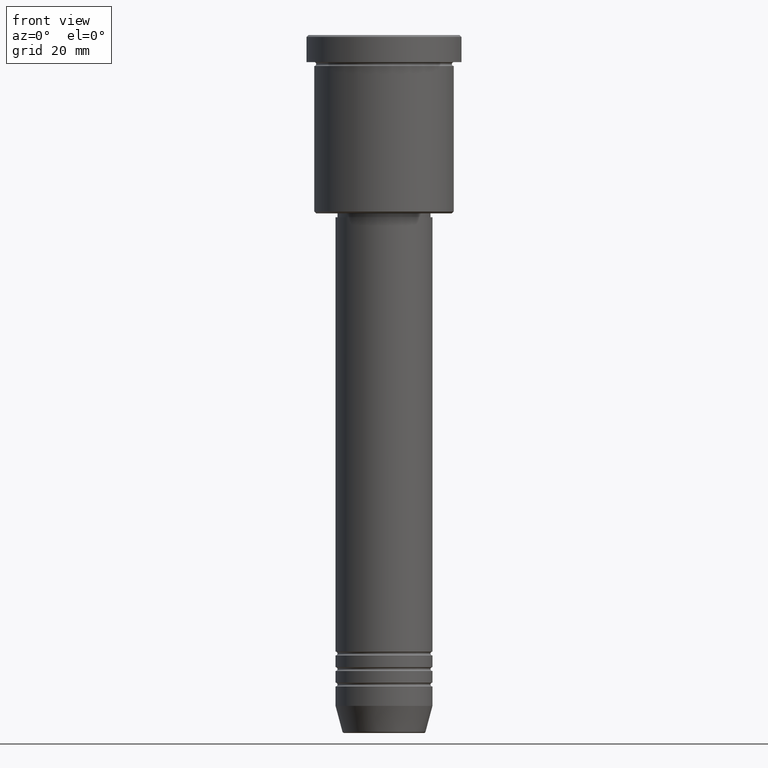
[diagram: clean part render]
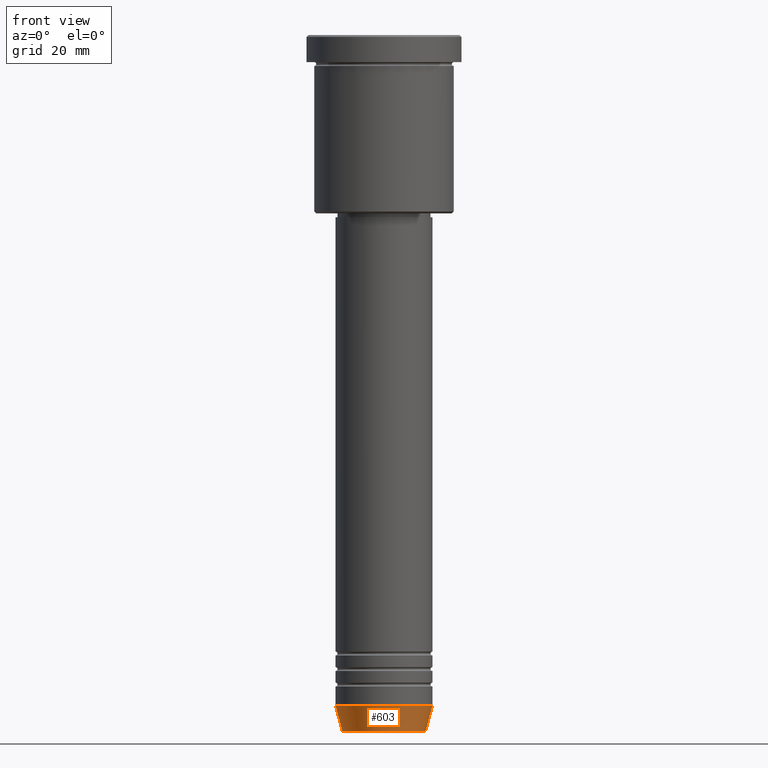
[diagram: same view with one face highlighted and labeled with its STEP entity id]
A machine part, front view. The second image highlights one B-rep face of the part: STEP entity #603.
In plain terms, the highlighted conical surface has half-angle 15 deg.
Its self-contained STEP definition (entity closure, byte-faithful):
#71 = VECTOR ( 'NONE', #135, 1000.000000000000000 ) ;
#135 = DIRECTION ( 'NONE',  ( 0.2588190451025213501, 0.000000000000000000, 0.9659258262890680902 ) ) ;
#143 = CARTESIAN_POINT ( 'NONE',  ( -10.72365507213719127, 1.422038742429750516E-15, -179.6294095225512706 ) ) ;
#150 = LINE ( 'NONE', #1051, #71 ) ;
#210 = CARTESIAN_POINT ( 'NONE',  ( 0.000000000000000000, 0.000000000000000000, -173.0000000000000284 ) ) ;
#236 = DIRECTION ( 'NONE',  ( 1.000000000000000000, 0.000000000000000000, 0.000000000000000000 ) ) ;
#262 = ORIENTED_EDGE ( 'NONE', *, *, #611, .F. ) ;
#318 = CIRCLE ( 'NONE', #834, 10.72365507213719127 ) ;
#389 = DIRECTION ( 'NONE',  ( -0.2588190451025213501, 3.169619151431772337E-17, 0.9659258262890680902 ) ) ;
#399 = AXIS2_PLACEMENT_3D ( 'NONE', #210, #844, #409 ) ;
#409 = DIRECTION ( 'NONE',  ( 1.000000000000000000, 0.000000000000000000, 0.000000000000000000 ) ) ;
#415 = DIRECTION ( 'NONE',  ( -0.000000000000000000, -0.000000000000000000, 1.000000000000000000 ) ) ;
#418 = CONICAL_SURFACE ( 'NONE', #399, 12.50000000000000000, 0.2617993877991500740 ) ;
#427 = DIRECTION ( 'NONE',  ( 1.000000000000000000, 0.000000000000000000, 0.000000000000000000 ) ) ;
#457 = EDGE_CURVE ( 'NONE', #1079, #1025, #318, .T. ) ;
#482 = LINE ( 'NONE', #1126, #1019 ) ;
#503 = DIRECTION ( 'NONE',  ( -0.000000000000000000, -0.000000000000000000, 1.000000000000000000 ) ) ;
#555 = CARTESIAN_POINT ( 'NONE',  ( 12.50000000000000000, 0.000000000000000000, -173.0000000000000284 ) ) ;
#603 = ADVANCED_FACE ( 'NONE', ( #764 ), #418, .T. ) ;
#611 = EDGE_CURVE ( 'NONE', #1079, #859, #482, .T. ) ;
#614 = CARTESIAN_POINT ( 'NONE',  ( 0.000000000000000000, 0.000000000000000000, -179.6294095225512706 ) ) ;
#661 = AXIS2_PLACEMENT_3D ( 'NONE', #693, #503, #427 ) ;
#693 = CARTESIAN_POINT ( 'NONE',  ( 0.000000000000000000, 0.000000000000000000, -173.0000000000000284 ) ) ;
#701 = EDGE_CURVE ( 'NONE', #1025, #975, #150, .T. ) ;
#733 = EDGE_CURVE ( 'NONE', #859, #975, #1181, .T. ) ;
#764 = FACE_OUTER_BOUND ( 'NONE', #990, .T. ) ;
#834 = AXIS2_PLACEMENT_3D ( 'NONE', #614, #415, #236 ) ;
#843 = ORIENTED_EDGE ( 'NONE', *, *, #733, .F. ) ;
#844 = DIRECTION ( 'NONE',  ( -0.000000000000000000, -0.000000000000000000, 1.000000000000000000 ) ) ;
#859 = VERTEX_POINT ( 'NONE', #1166 ) ;
#861 = ORIENTED_EDGE ( 'NONE', *, *, #701, .T. ) ;
#975 = VERTEX_POINT ( 'NONE', #555 ) ;
#990 = EDGE_LOOP ( 'NONE', ( #262, #1074, #861, #843 ) ) ;
#1019 = VECTOR ( 'NONE', #389, 1000.000000000000000 ) ;
#1025 = VERTEX_POINT ( 'NONE', #1144 ) ;
#1051 = CARTESIAN_POINT ( 'NONE',  ( 12.50000000000000000, 0.000000000000000000, -173.0000000000000284 ) ) ;
#1074 = ORIENTED_EDGE ( 'NONE', *, *, #457, .T. ) ;
#1079 = VERTEX_POINT ( 'NONE', #143 ) ;
#1126 = CARTESIAN_POINT ( 'NONE',  ( -12.50000000000000000, 1.530808498934191521E-15, -173.0000000000000284 ) ) ;
#1144 = CARTESIAN_POINT ( 'NONE',  ( 10.72365507213719127, 0.000000000000000000, -179.6294095225512706 ) ) ;
#1166 = CARTESIAN_POINT ( 'NONE',  ( -12.50000000000000000, 1.530808498934191521E-15, -173.0000000000000284 ) ) ;
#1181 = CIRCLE ( 'NONE', #661, 12.50000000000000000 ) ;